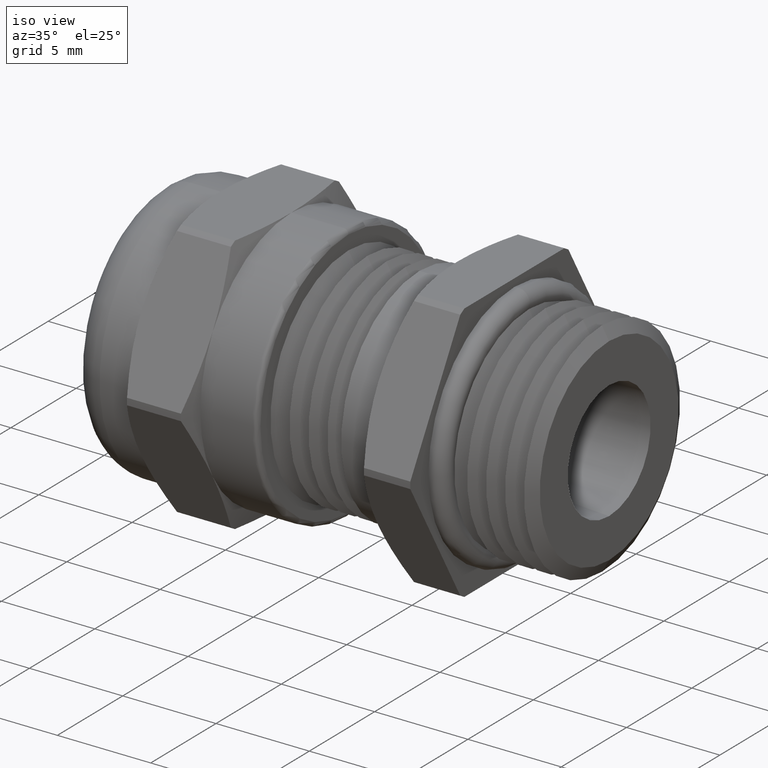
[diagram: clean part render]
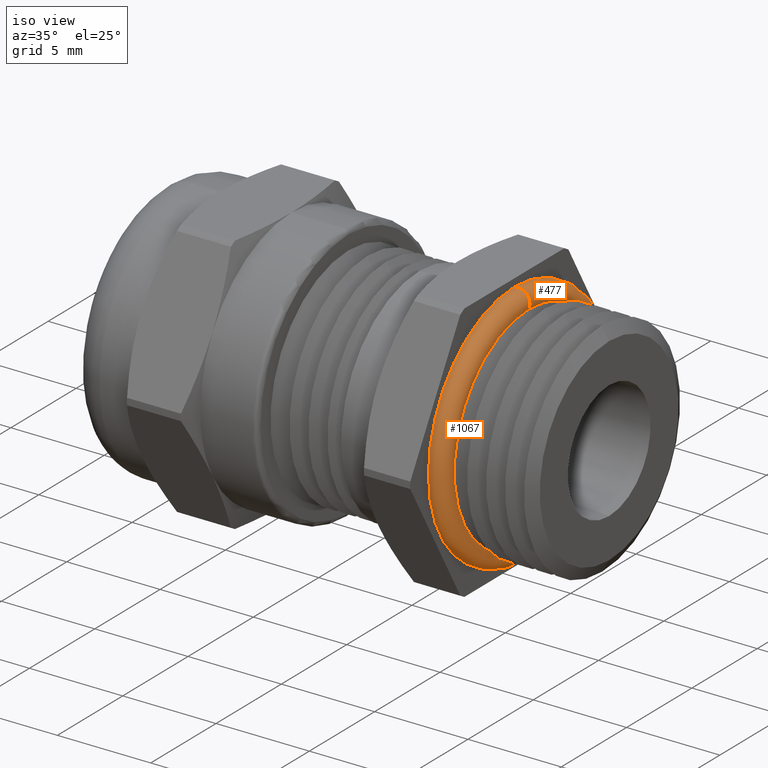
[diagram: same view with one multi-face feature highlighted, each face labeled with its STEP entity id]
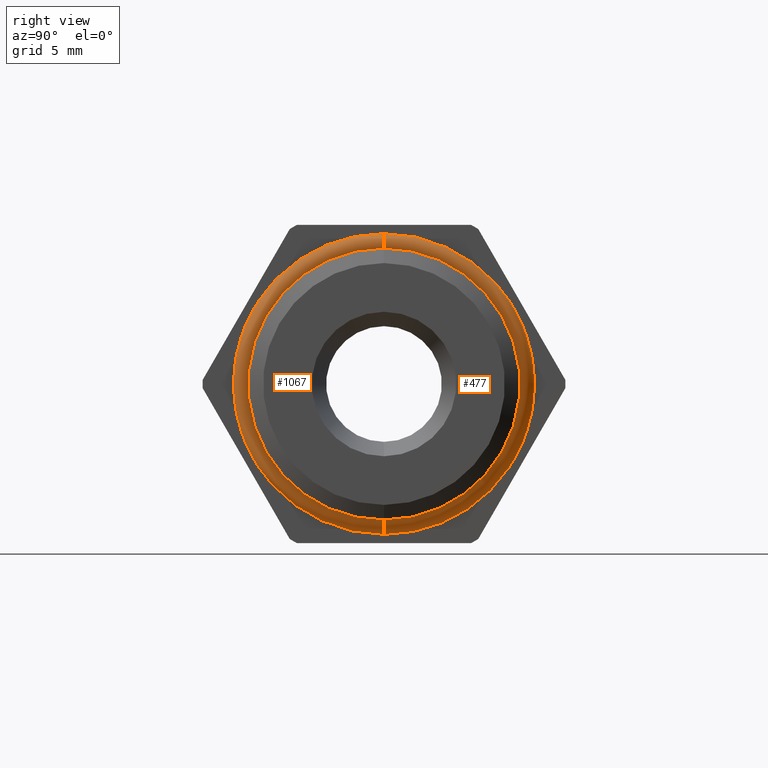
[diagram: same view with one multi-face feature highlighted, each face labeled with its STEP entity id]
A machine part, iso view. The highlighted faces form ONE feature: a constant-radius fillet chain: 2 tangent blend faces with common blend radius 0.635 mm. The faces share edges in the B-rep.
A second angle (right view) of the same feature is appended — it is thin or edge-on in the first view.
Their STEP definitions:
[1] entity #1067 (Torus):
#481 = VERTEX_POINT ( 'NONE', #2142 ) ;
#482 = VERTEX_POINT ( 'NONE', #2141 ) ;
#484 = EDGE_CURVE ( 'NONE', #481, #485, #2140, .T. ) ;
#485 = VERTEX_POINT ( 'NONE', #2135 ) ;
#488 = VERTEX_POINT ( 'NONE', #2129 ) ;
#548 = EDGE_CURVE ( 'NONE', #482, #488, #2271, .T. ) ;
#726 = EDGE_CURVE ( 'NONE', #482, #481, #2674, .T. ) ;
#989 = EDGE_CURVE ( 'NONE', #488, #485, #3027, .T. ) ;
#1067 = ADVANCED_FACE ( 'NONE', ( #3173 ), #3172, .T. ) ;
#1068 = EDGE_LOOP ( 'NONE', ( #1069, #1070, #1071, #1124 ) ) ;
#1069 = ORIENTED_EDGE ( 'NONE', *, *, #484, .F. ) ;
#1070 = ORIENTED_EDGE ( 'NONE', *, *, #726, .F. ) ;
#1071 = ORIENTED_EDGE ( 'NONE', *, *, #548, .T. ) ;
#1124 = ORIENTED_EDGE ( 'NONE', *, *, #989, .T. ) ;
#2129 = CARTESIAN_POINT ( 'NONE',  ( 0.3058524217492366600, 2.753770958824685400E-017, -0.2248624632622212300 ) ) ;
#2135 = CARTESIAN_POINT ( 'NONE',  ( 0.3058524217492366600, 0.0000000000000000000, 0.2248624632622212300 ) ) ;
#2136 = DIRECTION ( 'NONE',  ( 0.0000000000000000000, 1.224646799147353000E-016, 1.000000000000000000 ) ) ;
#2137 = DIRECTION ( 'NONE',  ( 0.0000000000000000000, 1.000000000000000000, -1.224646799147353200E-016 ) ) ;
#2138 = CARTESIAN_POINT ( 'NONE',  ( 0.2829999999999999700, 2.877918268066774300E-017, 0.2349998603736598000 ) ) ;
#2139 = AXIS2_PLACEMENT_3D ( 'NONE', #2138, #2137, #2136 ) ;
#2140 = CIRCLE ( 'NONE', #2139, 0.02500000000000004000 ) ;
#2141 = CARTESIAN_POINT ( 'NONE',  ( 0.2750000000000000200, 0.0000000000000000000, -0.2586852989383138800 ) ) ;
#2142 = CARTESIAN_POINT ( 'NONE',  ( 0.2750000000000000200, 3.167981233312822300E-017, 0.2586852989383138800 ) ) ;
#2267 = DIRECTION ( 'NONE',  ( 0.0000000000000000000, 0.0000000000000000000, -1.000000000000000000 ) ) ;
#2268 = DIRECTION ( 'NONE',  ( 0.0000000000000000000, -1.000000000000000000, 0.0000000000000000000 ) ) ;
#2269 = CARTESIAN_POINT ( 'NONE',  ( 0.2829999999999999700, 0.0000000000000000000, -0.2349998603736598000 ) ) ;
#2270 = AXIS2_PLACEMENT_3D ( 'NONE', #2269, #2268, #2267 ) ;
#2271 = CIRCLE ( 'NONE', #2270, 0.02500000000000004000 ) ;
#2631 = CARTESIAN_POINT ( 'NONE',  ( 0.2750000000000000200, 0.0000000000000000000, 0.0000000000000000000 ) ) ;
#2671 = DIRECTION ( 'NONE',  ( 0.0000000000000000000, 0.0000000000000000000, 1.000000000000000000 ) ) ;
#2672 = DIRECTION ( 'NONE',  ( -1.000000000000000000, 0.0000000000000000000, 0.0000000000000000000 ) ) ;
#2673 = AXIS2_PLACEMENT_3D ( 'NONE', #2631, #2672, #2671 ) ;
#2674 = CIRCLE ( 'NONE', #2673, 0.2586852989383138800 ) ;
#3023 = DIRECTION ( 'NONE',  ( 0.0000000000000000000, 0.0000000000000000000, 1.000000000000000000 ) ) ;
#3024 = DIRECTION ( 'NONE',  ( -1.000000000000000000, 0.0000000000000000000, 0.0000000000000000000 ) ) ;
#3025 = CARTESIAN_POINT ( 'NONE',  ( 0.3058524217492366600, 0.0000000000000000000, 0.0000000000000000000 ) ) ;
#3026 = AXIS2_PLACEMENT_3D ( 'NONE', #3025, #3024, #3023 ) ;
#3027 = CIRCLE ( 'NONE', #3026, 0.2248624632622212300 ) ;
#3168 = DIRECTION ( 'NONE',  ( 0.0000000000000000000, 0.0000000000000000000, -1.000000000000000000 ) ) ;
#3169 = DIRECTION ( 'NONE',  ( 1.000000000000000000, 0.0000000000000000000, 0.0000000000000000000 ) ) ;
#3170 = CARTESIAN_POINT ( 'NONE',  ( 0.2829999999999999700, 0.0000000000000000000, 0.0000000000000000000 ) ) ;
#3171 = AXIS2_PLACEMENT_3D ( 'NONE', #3170, #3169, #3168 ) ;
#3172 = TOROIDAL_SURFACE ( 'NONE', #3171, 0.2349998603736598000, 0.02500000000000002900 ) ;
#3173 = FACE_OUTER_BOUND ( 'NONE', #1068, .T. ) ;
[2] entity #477 (Torus):
#477 = ADVANCED_FACE ( 'NONE', ( #2153 ), #2150, .T. ) ;
#478 = EDGE_LOOP ( 'NONE', ( #479, #483, #486, #547 ) ) ;
#479 = ORIENTED_EDGE ( 'NONE', *, *, #480, .F. ) ;
#480 = EDGE_CURVE ( 'NONE', #481, #482, #2146, .T. ) ;
#481 = VERTEX_POINT ( 'NONE', #2142 ) ;
#482 = VERTEX_POINT ( 'NONE', #2141 ) ;
#483 = ORIENTED_EDGE ( 'NONE', *, *, #484, .T. ) ;
#484 = EDGE_CURVE ( 'NONE', #481, #485, #2140, .T. ) ;
#485 = VERTEX_POINT ( 'NONE', #2135 ) ;
#486 = ORIENTED_EDGE ( 'NONE', *, *, #487, .T. ) ;
#487 = EDGE_CURVE ( 'NONE', #485, #488, #2134, .T. ) ;
#488 = VERTEX_POINT ( 'NONE', #2129 ) ;
#547 = ORIENTED_EDGE ( 'NONE', *, *, #548, .F. ) ;
#548 = EDGE_CURVE ( 'NONE', #482, #488, #2271, .T. ) ;
#2129 = CARTESIAN_POINT ( 'NONE',  ( 0.3058524217492366600, 2.753770958824685400E-017, -0.2248624632622212300 ) ) ;
#2130 = DIRECTION ( 'NONE',  ( 0.0000000000000000000, 0.0000000000000000000, 1.000000000000000000 ) ) ;
#2131 = DIRECTION ( 'NONE',  ( -1.000000000000000000, 0.0000000000000000000, 0.0000000000000000000 ) ) ;
#2132 = CARTESIAN_POINT ( 'NONE',  ( 0.3058524217492366600, 0.0000000000000000000, 0.0000000000000000000 ) ) ;
#2133 = AXIS2_PLACEMENT_3D ( 'NONE', #2132, #2131, #2130 ) ;
#2134 = CIRCLE ( 'NONE', #2133, 0.2248624632622212300 ) ;
#2135 = CARTESIAN_POINT ( 'NONE',  ( 0.3058524217492366600, 0.0000000000000000000, 0.2248624632622212300 ) ) ;
#2136 = DIRECTION ( 'NONE',  ( 0.0000000000000000000, 1.224646799147353000E-016, 1.000000000000000000 ) ) ;
#2137 = DIRECTION ( 'NONE',  ( 0.0000000000000000000, 1.000000000000000000, -1.224646799147353200E-016 ) ) ;
#2138 = CARTESIAN_POINT ( 'NONE',  ( 0.2829999999999999700, 2.877918268066774300E-017, 0.2349998603736598000 ) ) ;
#2139 = AXIS2_PLACEMENT_3D ( 'NONE', #2138, #2137, #2136 ) ;
#2140 = CIRCLE ( 'NONE', #2139, 0.02500000000000004000 ) ;
#2141 = CARTESIAN_POINT ( 'NONE',  ( 0.2750000000000000200, 0.0000000000000000000, -0.2586852989383138800 ) ) ;
#2142 = CARTESIAN_POINT ( 'NONE',  ( 0.2750000000000000200, 3.167981233312822300E-017, 0.2586852989383138800 ) ) ;
#2143 = DIRECTION ( 'NONE',  ( 0.0000000000000000000, 0.0000000000000000000, 1.000000000000000000 ) ) ;
#2144 = DIRECTION ( 'NONE',  ( -1.000000000000000000, 0.0000000000000000000, 0.0000000000000000000 ) ) ;
#2145 = AXIS2_PLACEMENT_3D ( 'NONE', #2151, #2144, #2143 ) ;
#2146 = CIRCLE ( 'NONE', #2145, 0.2586852989383138800 ) ;
#2147 = DIRECTION ( 'NONE',  ( 0.0000000000000000000, 0.0000000000000000000, -1.000000000000000000 ) ) ;
#2148 = DIRECTION ( 'NONE',  ( 1.000000000000000000, 0.0000000000000000000, 0.0000000000000000000 ) ) ;
#2149 = AXIS2_PLACEMENT_3D ( 'NONE', #2152, #2148, #2147 ) ;
#2150 = TOROIDAL_SURFACE ( 'NONE', #2149, 0.2349998603736598000, 0.02500000000000002900 ) ;
#2151 = CARTESIAN_POINT ( 'NONE',  ( 0.2750000000000000200, 0.0000000000000000000, 0.0000000000000000000 ) ) ;
#2152 = CARTESIAN_POINT ( 'NONE',  ( 0.2829999999999999700, 0.0000000000000000000, 0.0000000000000000000 ) ) ;
#2153 = FACE_OUTER_BOUND ( 'NONE', #478, .T. ) ;
#2267 = DIRECTION ( 'NONE',  ( 0.0000000000000000000, 0.0000000000000000000, -1.000000000000000000 ) ) ;
#2268 = DIRECTION ( 'NONE',  ( 0.0000000000000000000, -1.000000000000000000, 0.0000000000000000000 ) ) ;
#2269 = CARTESIAN_POINT ( 'NONE',  ( 0.2829999999999999700, 0.0000000000000000000, -0.2349998603736598000 ) ) ;
#2270 = AXIS2_PLACEMENT_3D ( 'NONE', #2269, #2268, #2267 ) ;
#2271 = CIRCLE ( 'NONE', #2270, 0.02500000000000004000 ) ;